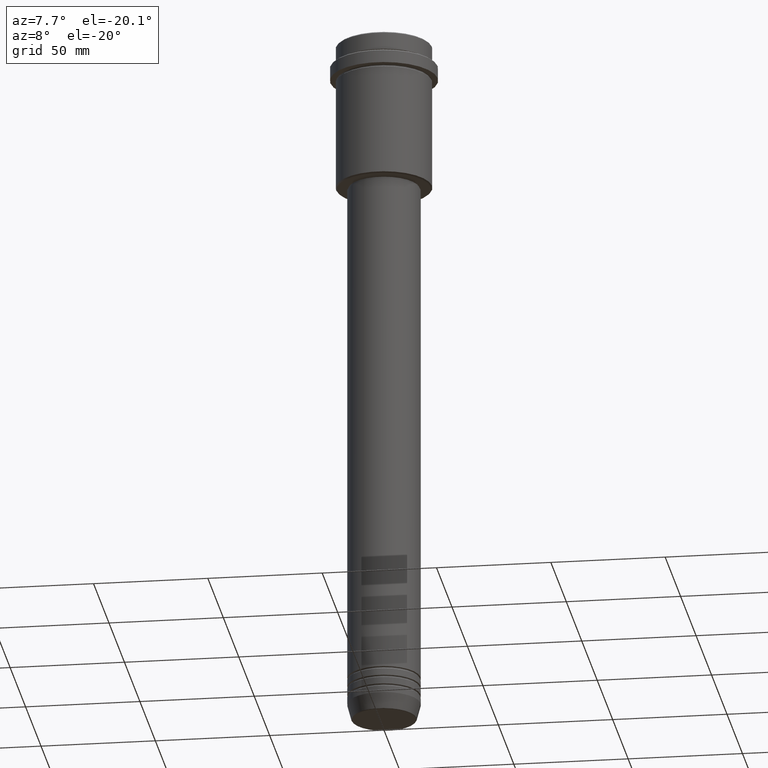
[diagram: clean part render]
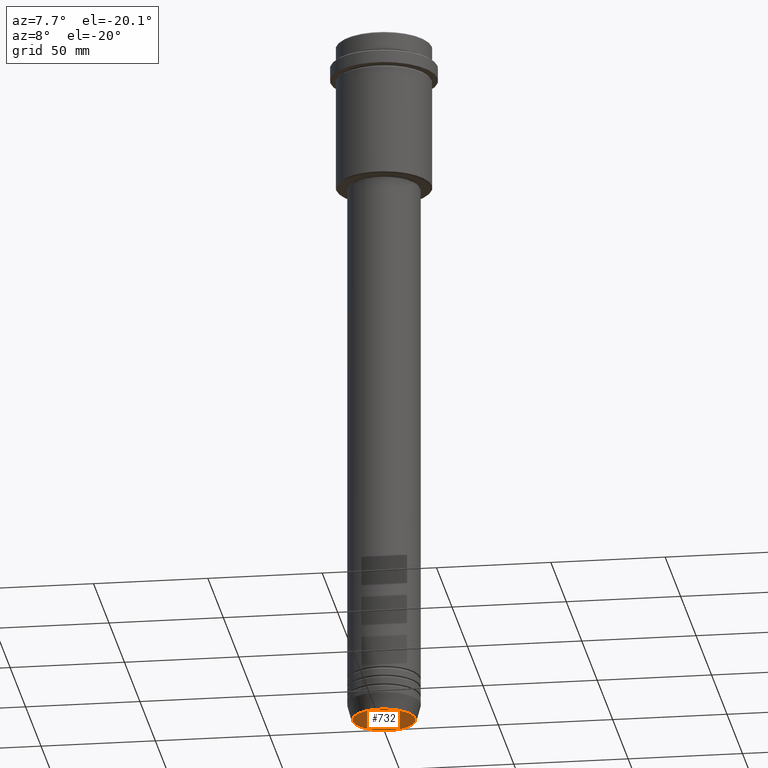
[diagram: same view with one face highlighted and labeled with its STEP entity id]
A machine part, auxiliary view. The second image highlights one B-rep face of the part: STEP entity #732.
In plain terms, the highlighted planar face has unit normal (0, -0, 1).
Its self-contained STEP definition (entity closure, byte-faithful):
#86 = VERTEX_POINT ( 'NONE', #398 ) ;
#398 = CARTESIAN_POINT ( 'NONE',  ( -13.74069215899265828, 1.712322416342415986E-15, -310.0000000000000000 ) ) ;
#440 = DIRECTION ( 'NONE',  ( 0.000000000000000000, -0.000000000000000000, 1.000000000000000000 ) ) ;
#465 = AXIS2_PLACEMENT_3D ( 'NONE', #787, #559, #768 ) ;
#498 = EDGE_LOOP ( 'NONE', ( #925, #1290 ) ) ;
#559 = DIRECTION ( 'NONE',  ( 0.000000000000000000, 0.000000000000000000, -1.000000000000000000 ) ) ;
#568 = VERTEX_POINT ( 'NONE', #1053 ) ;
#653 = AXIS2_PLACEMENT_3D ( 'NONE', #868, #779, #681 ) ;
#681 = DIRECTION ( 'NONE',  ( 1.000000000000000000, 0.000000000000000000, 0.000000000000000000 ) ) ;
#732 = ADVANCED_FACE ( 'NONE', ( #1222 ), #1108, .F. ) ;
#768 = DIRECTION ( 'NONE',  ( 1.000000000000000000, 0.000000000000000000, 0.000000000000000000 ) ) ;
#779 = DIRECTION ( 'NONE',  ( 0.000000000000000000, 0.000000000000000000, -1.000000000000000000 ) ) ;
#781 = EDGE_CURVE ( 'NONE', #568, #86, #1078, .T. ) ;
#787 = CARTESIAN_POINT ( 'NONE',  ( 0.000000000000000000, 0.000000000000000000, -310.0000000000000000 ) ) ;
#868 = CARTESIAN_POINT ( 'NONE',  ( 0.000000000000000000, 0.000000000000000000, -310.0000000000000000 ) ) ;
#925 = ORIENTED_EDGE ( 'NONE', *, *, #781, .T. ) ;
#992 = CARTESIAN_POINT ( 'NONE',  ( 0.000000000000000000, 0.000000000000000000, -310.0000000000000000 ) ) ;
#1013 = DIRECTION ( 'NONE',  ( 1.000000000000000000, 0.000000000000000000, 0.000000000000000000 ) ) ;
#1053 = CARTESIAN_POINT ( 'NONE',  ( 13.74069215899265828, 0.000000000000000000, -310.0000000000000000 ) ) ;
#1078 = CIRCLE ( 'NONE', #465, 13.74069215899265828 ) ;
#1108 = PLANE ( 'NONE',  #1286 ) ;
#1180 = EDGE_CURVE ( 'NONE', #86, #568, #1407, .T. ) ;
#1222 = FACE_OUTER_BOUND ( 'NONE', #498, .T. ) ;
#1286 = AXIS2_PLACEMENT_3D ( 'NONE', #992, #440, #1013 ) ;
#1290 = ORIENTED_EDGE ( 'NONE', *, *, #1180, .T. ) ;
#1407 = CIRCLE ( 'NONE', #653, 13.74069215899265828 ) ;